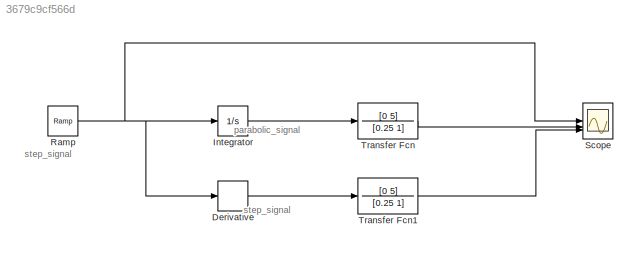
MODEL slx_3679c9cf566d
KIND model
CONFIG AbsTol = auto
CONFIG EnableMultiTasking = off
CONFIG FixedStep = 0.001
CONFIG MaxStep = 0.001
CONFIG MinStep = auto
CONFIG RelTol = 1e-3
CONFIG SampleTimeConstraint = Unconstrained
CONFIG SolverName = VariableStepAuto
CONFIG StartTime = 0.0
CONFIG StopTime = 10.0
BLOCK [Derivative] Derivative
BLOCK [Integrator] Integrator
BLOCK [Reference] Ramp  REF=simulink/Sources/Ramp
  SourceBlock = simulink/Sources/Ramp
  SourceType = Ramp
BLOCK [Scope] Scope
  Floating = off
  NumInputPorts = 3
  ScopeSpecificationString = Simulink.scopes.TimeScopeBlockCfg('CurrentConfiguration', extmgr.ConfigurationSet(extmgr.Configuration('Core','General UI',true),extmgr.Configuration('Core','Source UI',true),extmgr.Configuration('Sources','WiredSimulink',true),extmgr.Configuration('Visuals','Time Domain',true,'SerializedDisplays',{struct('MinYLimReal','-2.5','MaxYLimReal','22.5','YLabelReal','','MinYLimMag','0.00000','MaxYLimMag'...<+2736ch>
BLOCK [TransferFcn] Transfer Fcn
  Denominator = [0.25 1]
  Numerator = [0 5]
BLOCK [TransferFcn] Transfer Fcn1
  Denominator = [0.25 1]
  Numerator = [0 5]
ANNOTATION (root): parabolic_signal
ANNOTATION (root): step_signal
LINE Derivative:1 -> Transfer Fcn1:1
LINE Integrator:1 -> Transfer Fcn:1
NET Ramp:1 -> Derivative:1, Integrator:1, Scope:1
LINE Transfer Fcn1:1 -> Scope:3
LINE Transfer Fcn:1 -> Scope:2
note: NET lines group one-source signal fan-out (src -> all destinations, sorted); 1:1 wires keep LINE
